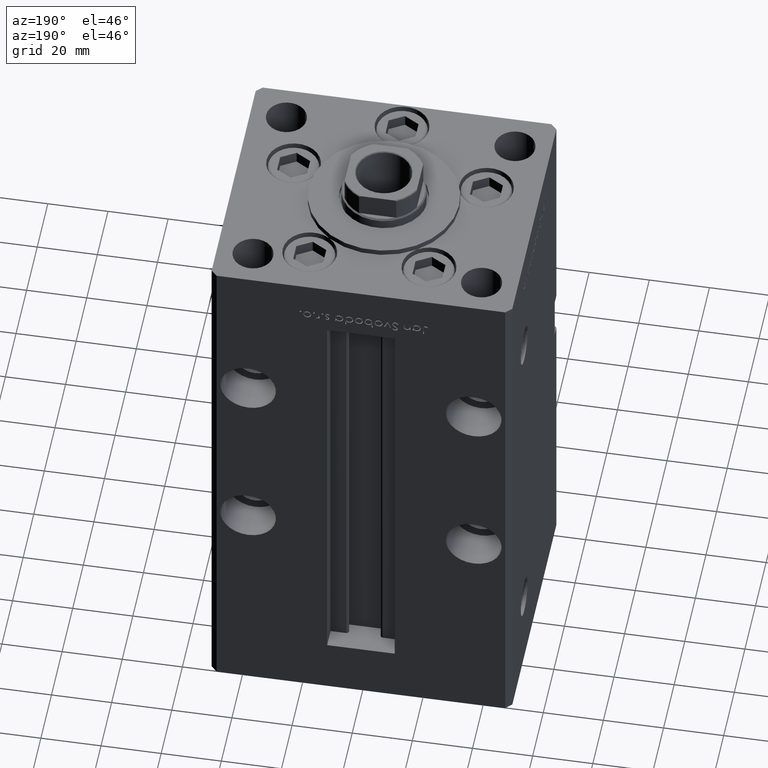
[diagram: clean part render]
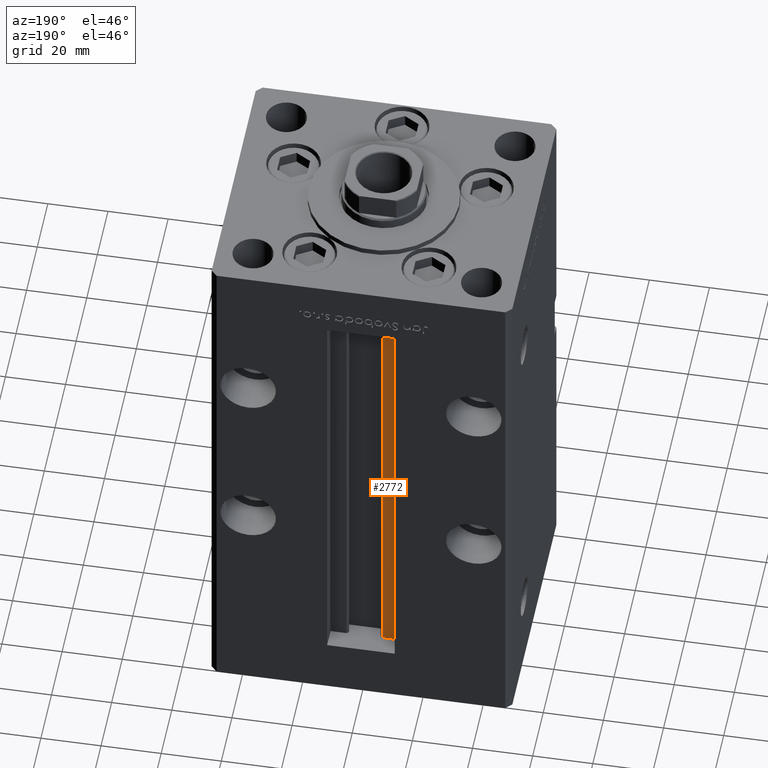
[diagram: same view with one face highlighted and labeled with its STEP entity id]
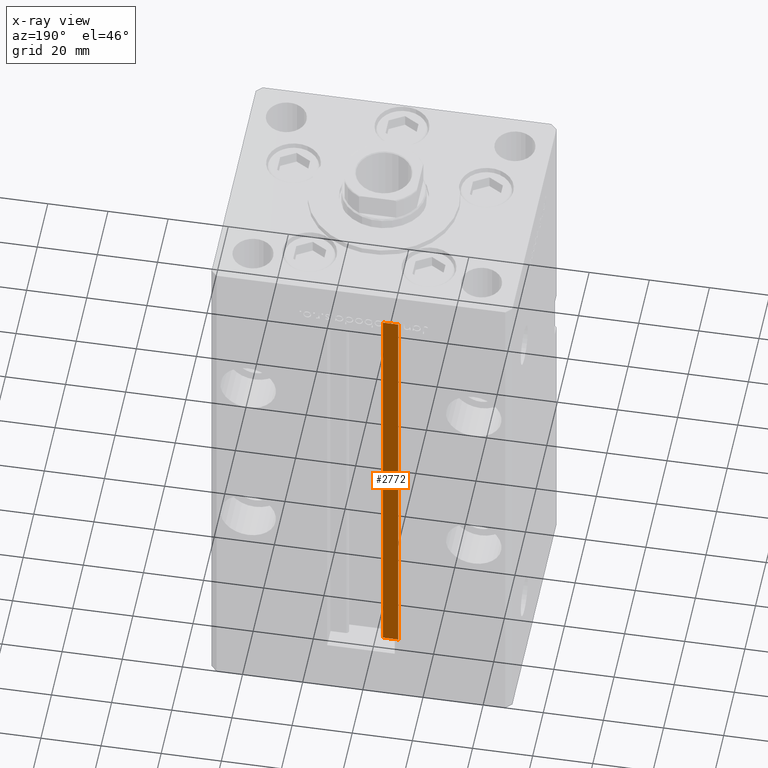
[diagram: x-ray of the same camera — body ghosted, the highlighted face saturated]
A machine part, auxiliary view. The second image highlights one B-rep face of the part: STEP entity #2772.
The next image is the same camera in x-ray: the body ghosted, the highlighted face saturated — about 0% of this face is hidden behind the body in this view.
In plain terms, the highlighted planar face has unit normal (0, -1, 0).
Its self-contained STEP definition (entity closure, byte-faithful):
#540 = EDGE_CURVE ( 'NONE', #50959, #41667, #4137, .T. ) ;
#1288 = DIRECTION ( 'NONE',  ( -0.000000000000000000, -0.000000000000000000, 1.000000000000000000 ) ) ;
#2175 = ORIENTED_EDGE ( 'NONE', *, *, #540, .F. ) ;
#2772 = ADVANCED_FACE ( 'NONE', ( #36301 ), #33053, .F. ) ;
#3486 = CARTESIAN_POINT ( 'NONE',  ( -6.183333333333996151, 37.00000000000000000, 0.000000000000000000 ) ) ;
#3890 = EDGE_CURVE ( 'NONE', #35364, #26452, #17708, .T. ) ;
#4059 = EDGE_CURVE ( 'NONE', #35364, #50959, #44852, .T. ) ;
#4137 = LINE ( 'NONE', #20537, #22831 ) ;
#6600 = AXIS2_PLACEMENT_3D ( 'NONE', #3486, #40346, #20427 ) ;
#7608 = ORIENTED_EDGE ( 'NONE', *, *, #3890, .T. ) ;
#8542 = DIRECTION ( 'NONE',  ( 1.000000000000000000, -0.000000000000000000, -0.000000000000000000 ) ) ;
#17708 = LINE ( 'NONE', #38150, #30690 ) ;
#19630 = ORIENTED_EDGE ( 'NONE', *, *, #33672, .F. ) ;
#20358 = CARTESIAN_POINT ( 'NONE',  ( -6.183333333333996151, 37.00000000000000000, 0.000000000000000000 ) ) ;
#20427 = DIRECTION ( 'NONE',  ( 0.000000000000000000, 0.000000000000000000, -1.000000000000000000 ) ) ;
#20537 = CARTESIAN_POINT ( 'NONE',  ( -6.183333333333996151, 37.00000000000000000, 0.000000000000000000 ) ) ;
#22831 = VECTOR ( 'NONE', #36951, 1000.000000000000000 ) ;
#24307 = CARTESIAN_POINT ( 'NONE',  ( -6.183333333333996151, 37.00000000000000000, 0.000000000000000000 ) ) ;
#26452 = VERTEX_POINT ( 'NONE', #27066 ) ;
#27066 = CARTESIAN_POINT ( 'NONE',  ( -11.24999999999999645, 37.00000000000000000, 148.5000000000000000 ) ) ;
#30690 = VECTOR ( 'NONE', #1288, 1000.000000000000000 ) ;
#33053 = PLANE ( 'NONE',  #6600 ) ;
#33672 = EDGE_CURVE ( 'NONE', #41667, #26452, #51783, .T. ) ;
#35364 = VERTEX_POINT ( 'NONE', #42891 ) ;
#36301 = FACE_OUTER_BOUND ( 'NONE', #49510, .T. ) ;
#36951 = DIRECTION ( 'NONE',  ( -0.000000000000000000, -0.000000000000000000, 1.000000000000000000 ) ) ;
#38150 = CARTESIAN_POINT ( 'NONE',  ( -11.24999999999999645, 37.00000000000000000, 0.000000000000000000 ) ) ;
#40346 = DIRECTION ( 'NONE',  ( 0.000000000000000000, -1.000000000000000000, -0.000000000000000000 ) ) ;
#41667 = VERTEX_POINT ( 'NONE', #52681 ) ;
#42891 = CARTESIAN_POINT ( 'NONE',  ( -11.24999999999999645, 37.00000000000000000, 0.000000000000000000 ) ) ;
#43421 = DIRECTION ( 'NONE',  ( -1.000000000000000000, 0.000000000000000000, 0.000000000000000000 ) ) ;
#44852 = LINE ( 'NONE', #20358, #47036 ) ;
#46972 = VECTOR ( 'NONE', #43421, 1000.000000000000000 ) ;
#47036 = VECTOR ( 'NONE', #8542, 1000.000000000000000 ) ;
#48509 = ORIENTED_EDGE ( 'NONE', *, *, #4059, .F. ) ;
#49510 = EDGE_LOOP ( 'NONE', ( #2175, #48509, #7608, #19630 ) ) ;
#50721 = CARTESIAN_POINT ( 'NONE',  ( 0.000000000000000000, 37.00000000000000000, 148.5000000000000000 ) ) ;
#50959 = VERTEX_POINT ( 'NONE', #24307 ) ;
#51783 = LINE ( 'NONE', #50721, #46972 ) ;
#52681 = CARTESIAN_POINT ( 'NONE',  ( -6.183333333333996151, 37.00000000000000000, 148.5000000000000000 ) ) ;